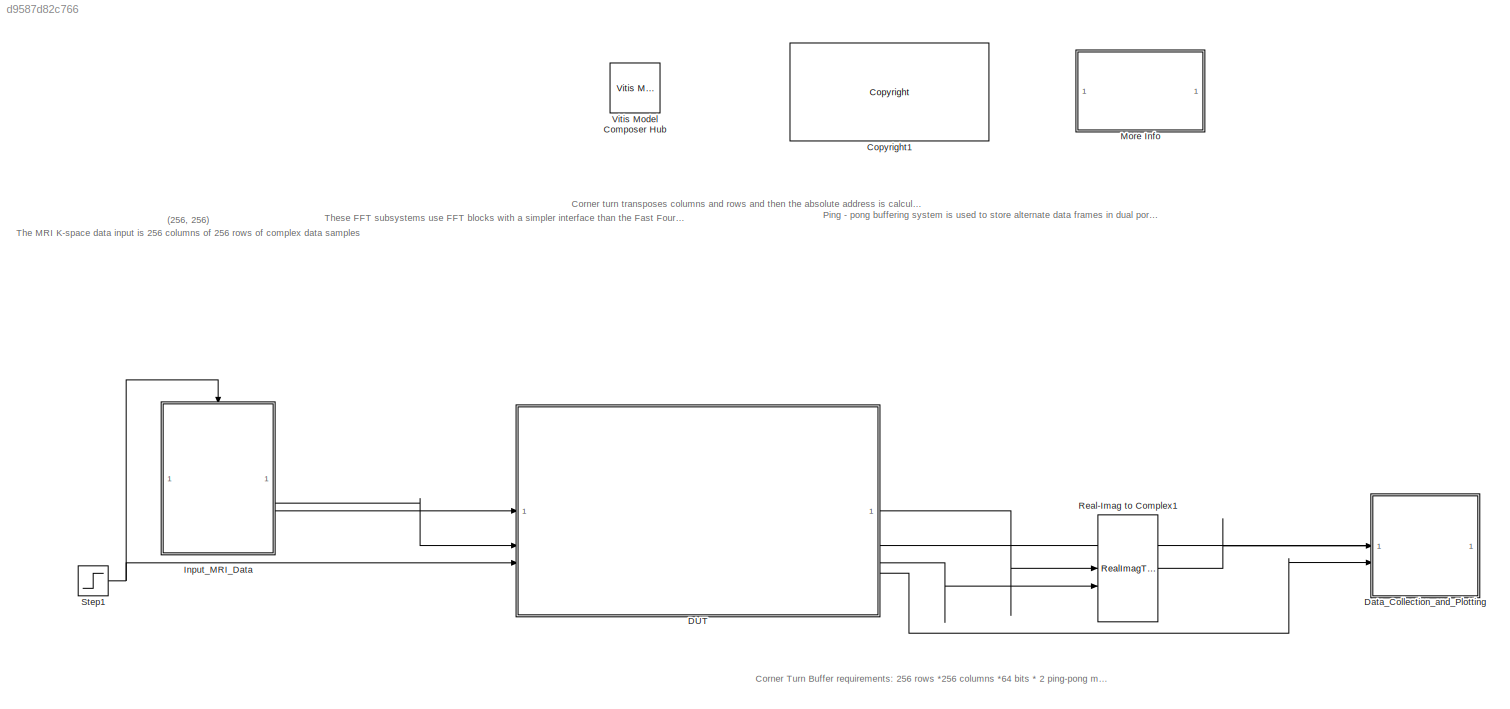
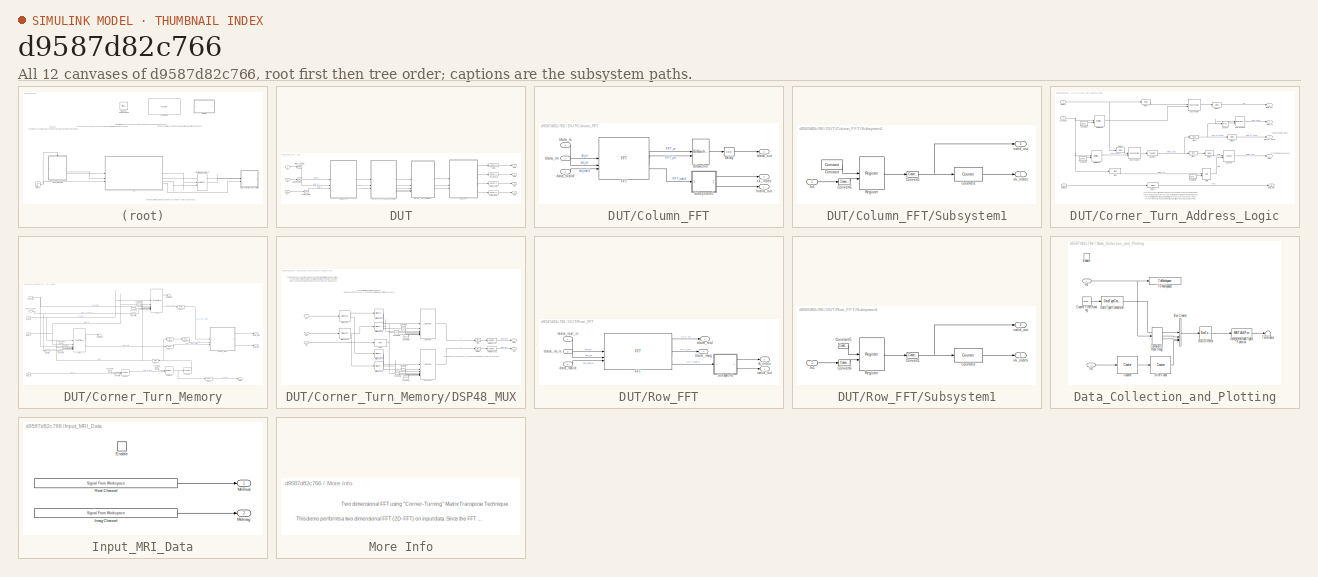
[diagram: thumbnail index - all 12 canvases of the model, root first then tree order]
MODEL slx_d9587d82c766
KIND model
CONFIG AbsTol = auto
CONFIG EnableMultiTasking = on
CONFIG FixedStep = auto
CONFIG MaxStep = auto
CONFIG MinStep = auto
CONFIG PreLoadFcn = MRI_2D_FFT_PreloadFcn
CONFIG RelTol = 1e-3
CONFIG SampleTimeConstraint = Unconstrained
CONFIG SolverName = VariableStepAuto
CONFIG StartTime = 0.0
CONFIG StopTime = 256*256*11+2000
BLOCK [Reference] Copyright1  REF=hdlUtilities/<copyright redacted>
  SourceBlock = hdlUtilities/<copyright redacted>
  SourceType = Xilinx <copyright redacted>
BLOCK [SubSystem] DUT
BLOCK [SubSystem] DUT/Column_FFT
BLOCK [Reference] DUT/Column_FFT/BitBasher  REF=hdlBasic/BitBasher
  SourceBlock = hdlBasic/BitBasher
  SourceType = BitBasher Block
BLOCK [Reference] DUT/Column_FFT/Delay  REF=hdlBasic/Delay
  SourceBlock = hdlBasic/Delay
  SourceType = Delay Block
BLOCK [Reference] DUT/Column_FFT/FFT  REF=hdlBasic/FFT
  SourceBlock = hdlBasic/FFT
  SourceType = Forward Fast Fourier Transform Block
BLOCK [SubSystem] DUT/Column_FFT/Subsystem1
BLOCK [Reference] DUT/Column_FFT/Subsystem1/Constant  REF=hdlBasic/Constant
  SourceBlock = hdlBasic/Constant
  SourceType = Constant Block Block
BLOCK [Reference] DUT/Column_FFT/Subsystem1/Convert1  REF=hdlBasic/Convert
  SourceBlock = hdlBasic/Convert
  SourceType = Type Converter Block
BLOCK [Reference] DUT/Column_FFT/Subsystem1/Convert6  REF=hdlBasic/Convert
  SourceBlock = hdlBasic/Convert
  SourceType = Type Converter Block
BLOCK [Reference] DUT/Column_FFT/Subsystem1/Counter2  REF=hdlBasic/Counter
  SourceBlock = hdlBasic/Counter
  SourceType = Counter Block
BLOCK [Inport] DUT/Column_FFT/Subsystem1/In1
BLOCK [Reference] DUT/Column_FFT/Subsystem1/Register  REF=hdlBasic/Register
  SourceBlock = hdlBasic/Register
  SourceType = Register Block
BLOCK [Outport] DUT/Column_FFT/Subsystem1/valid_out
  Port = 2
  VectorParamsAs1DForOutWhenUnconnected = off
BLOCK [Outport] DUT/Column_FFT/Subsystem1/xk_index
  VectorParamsAs1DForOutWhenUnconnected = off
BLOCK [Inport] DUT/Column_FFT/data_tvalid
  Port = 3
BLOCK [Inport] DUT/Column_FFT/tdata_im
  Port = 2
BLOCK [Outport] DUT/Column_FFT/tdata_out
  Port = 3
  VectorParamsAs1DForOutWhenUnconnected = off
BLOCK [Inport] DUT/Column_FFT/tdata_re
BLOCK [Outport] DUT/Column_FFT/tvalid_out
  VectorParamsAs1DForOutWhenUnconnected = off
BLOCK [Outport] DUT/Column_FFT/xk_index
  Port = 2
  VectorParamsAs1DForOutWhenUnconnected = off
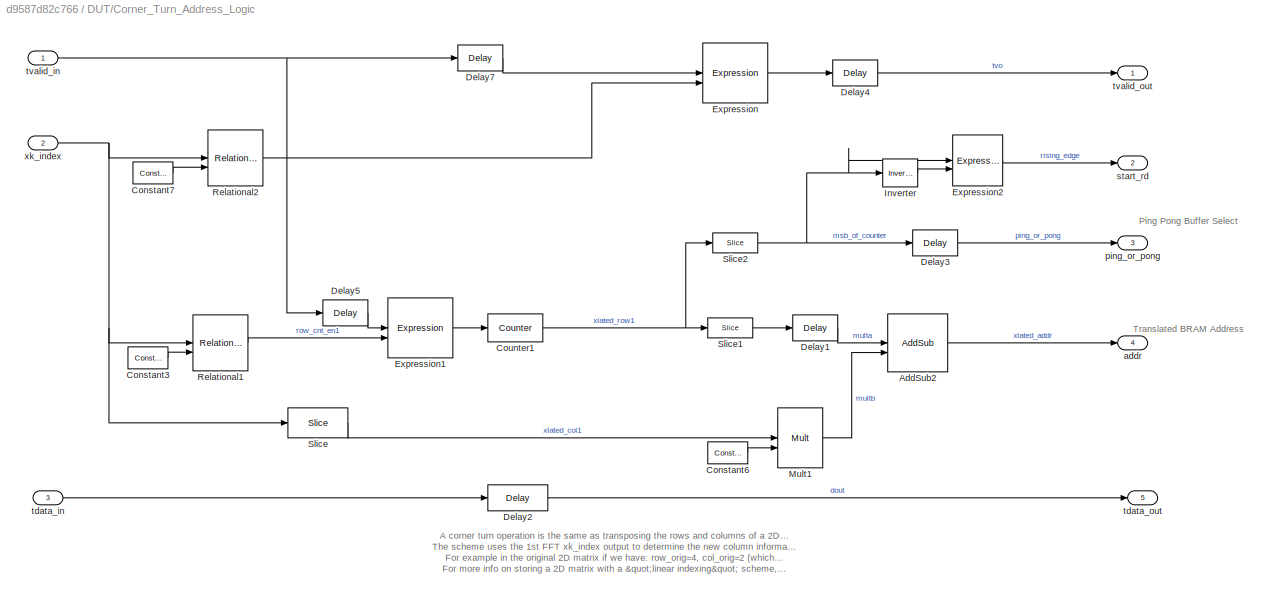
BLOCK [SubSystem] DUT/Corner_Turn_Address_Logic
BLOCK [Reference] DUT/Corner_Turn_Address_Logic/AddSub2  REF=hdlBasic/AddSub
  SourceBlock = hdlBasic/AddSub
  SourceType = Adder/Subtracter Block
BLOCK [Reference] DUT/Corner_Turn_Address_Logic/Constant3  REF=hdlBasic/Constant
  SourceBlock = hdlBasic/Constant
  SourceType = Constant Block Block
BLOCK [Reference] DUT/Corner_Turn_Address_Logic/Constant6  REF=hdlBasic/Constant
  SourceBlock = hdlBasic/Constant
  SourceType = Constant Block Block
BLOCK [Reference] DUT/Corner_Turn_Address_Logic/Constant7  REF=hdlBasic/Constant
  SourceBlock = hdlBasic/Constant
  SourceType = Constant Block Block
BLOCK [Reference] DUT/Corner_Turn_Address_Logic/Counter1  REF=hdlBasic/Counter
  SourceBlock = hdlBasic/Counter
  SourceType = Counter Block
BLOCK [Reference] DUT/Corner_Turn_Address_Logic/Delay1  REF=hdlBasic/Delay
  SourceBlock = hdlBasic/Delay
  SourceType = Delay Block
BLOCK [Reference] DUT/Corner_Turn_Address_Logic/Delay2  REF=hdlBasic/Delay
  SourceBlock = hdlBasic/Delay
  SourceType = Delay Block
BLOCK [Reference] DUT/Corner_Turn_Address_Logic/Delay3  REF=hdlBasic/Delay
  SourceBlock = hdlBasic/Delay
  SourceType = Delay Block
BLOCK [Reference] DUT/Corner_Turn_Address_Logic/Delay4  REF=hdlBasic/Delay
  SourceBlock = hdlBasic/Delay
  SourceType = Delay Block
BLOCK [Reference] DUT/Corner_Turn_Address_Logic/Delay5  REF=hdlBasic/Delay
  SourceBlock = hdlBasic/Delay
  SourceType = Delay Block
BLOCK [Reference] DUT/Corner_Turn_Address_Logic/Delay7  REF=hdlBasic/Delay
  SourceBlock = hdlBasic/Delay
  SourceType = Delay Block
BLOCK [Reference] DUT/Corner_Turn_Address_Logic/Expression  REF=hdlBasic/Expression
  SourceBlock = hdlBasic/Expression
  SourceType = Bitwise Expression Evaluator Block
BLOCK [Reference] DUT/Corner_Turn_Address_Logic/Expression1  REF=hdlBasic/Expression
  SourceBlock = hdlBasic/Expression
  SourceType = Bitwise Expression Evaluator Block
BLOCK [Reference] DUT/Corner_Turn_Address_Logic/Expression2  REF=hdlBasic/Expression
  SourceBlock = hdlBasic/Expression
  SourceType = Bitwise Expression Evaluator Block
BLOCK [Reference] DUT/Corner_Turn_Address_Logic/Inverter  REF=hdlBasic/Inverter
  SourceBlock = hdlBasic/Inverter
  SourceType = Inverter Block
BLOCK [Reference] DUT/Corner_Turn_Address_Logic/Mult1  REF=hdlBasic/Mult
  SourceBlock = hdlBasic/Mult
  SourceType = Multiplier Block
BLOCK [Reference] DUT/Corner_Turn_Address_Logic/Relational1  REF=hdlBasic/Relational
  SourceBlock = hdlBasic/Relational
  SourceType = Arithmetic Relational Operator Block
BLOCK [Reference] DUT/Corner_Turn_Address_Logic/Relational2  REF=hdlBasic/Relational
  SourceBlock = hdlBasic/Relational
  SourceType = Arithmetic Relational Operator Block
BLOCK [Reference] DUT/Corner_Turn_Address_Logic/Slice  REF=hdlBasic/Slice
  SourceBlock = hdlBasic/Slice
  SourceType = Bit Slice Extractor Block
BLOCK [Reference] DUT/Corner_Turn_Address_Logic/Slice1  REF=hdlBasic/Slice
  SourceBlock = hdlBasic/Slice
  SourceType = Bit Slice Extractor Block
BLOCK [Reference] DUT/Corner_Turn_Address_Logic/Slice2  REF=hdlBasic/Slice
  SourceBlock = hdlBasic/Slice
  SourceType = Bit Slice Extractor Block
BLOCK [Outport] DUT/Corner_Turn_Address_Logic/addr
  Port = 4
  VectorParamsAs1DForOutWhenUnconnected = off
BLOCK [Outport] DUT/Corner_Turn_Address_Logic/ping_or_pong
  Port = 3
  VectorParamsAs1DForOutWhenUnconnected = off
BLOCK [Outport] DUT/Corner_Turn_Address_Logic/start_rd
  Port = 2
  VectorParamsAs1DForOutWhenUnconnected = off
BLOCK [Inport] DUT/Corner_Turn_Address_Logic/tdata_in
  Port = 3
BLOCK [Outport] DUT/Corner_Turn_Address_Logic/tdata_out
  Port = 5
  VectorParamsAs1DForOutWhenUnconnected = off
BLOCK [Inport] DUT/Corner_Turn_Address_Logic/tvalid_in
BLOCK [Outport] DUT/Corner_Turn_Address_Logic/tvalid_out
  VectorParamsAs1DForOutWhenUnconnected = off
BLOCK [Inport] DUT/Corner_Turn_Address_Logic/xk_index
  Port = 2
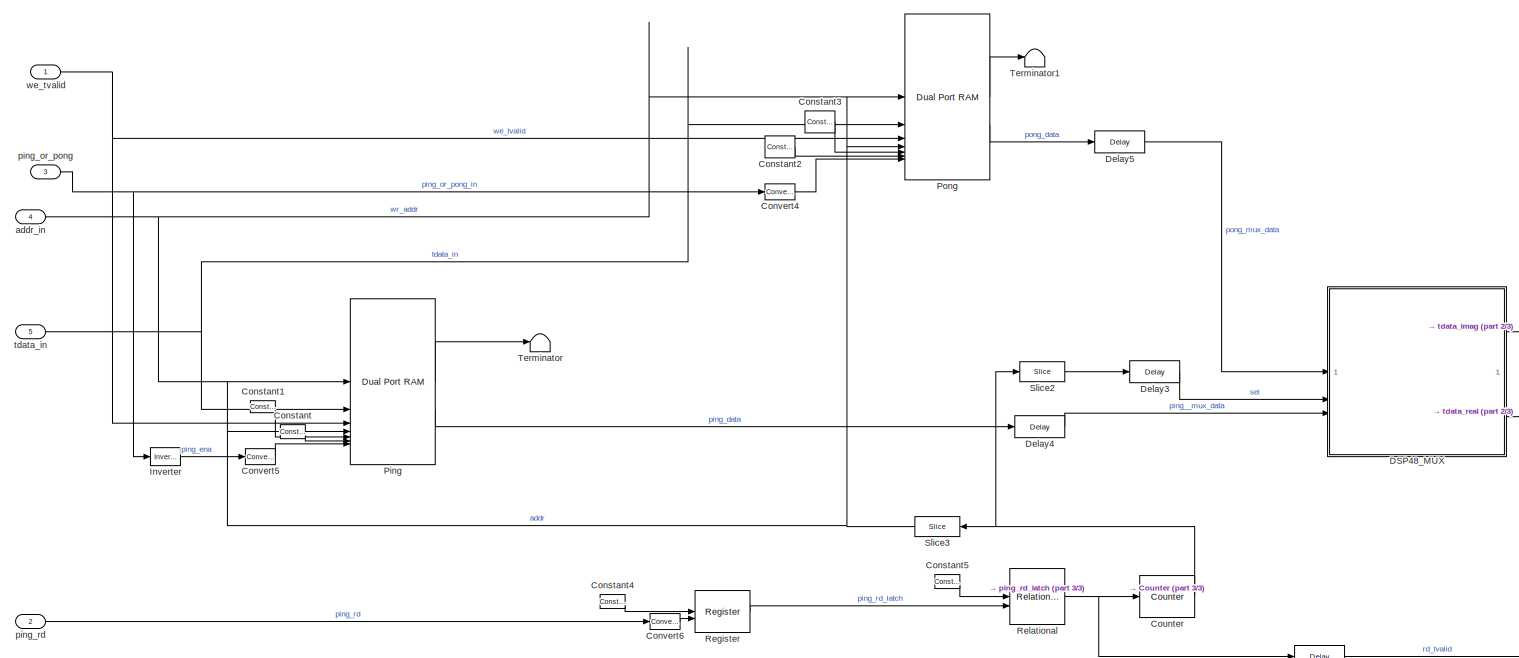
[diagram: DUT/Corner_Turn_Memory - part 1/3, most of the canvas]
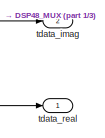
[diagram: DUT/Corner_Turn_Memory - part 2/3, middle right region]
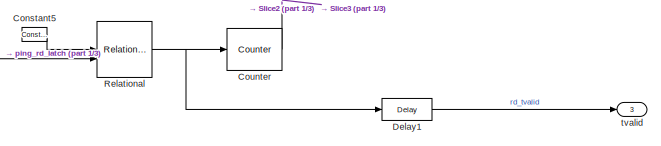
[diagram: DUT/Corner_Turn_Memory - part 3/3, bottom right region]
BLOCK [SubSystem] DUT/Corner_Turn_Memory
BLOCK [Reference] DUT/Corner_Turn_Memory/Constant  REF=hdlBasic/Constant
  SourceBlock = hdlBasic/Constant
  SourceType = Constant Block Block
BLOCK [Reference] DUT/Corner_Turn_Memory/Constant1  REF=hdlBasic/Constant
  SourceBlock = hdlBasic/Constant
  SourceType = Constant Block Block
BLOCK [Reference] DUT/Corner_Turn_Memory/Constant2  REF=hdlBasic/Constant
  SourceBlock = hdlBasic/Constant
  SourceType = Constant Block Block
BLOCK [Reference] DUT/Corner_Turn_Memory/Constant3  REF=hdlBasic/Constant
  SourceBlock = hdlBasic/Constant
  SourceType = Constant Block Block
BLOCK [Reference] DUT/Corner_Turn_Memory/Constant4  REF=hdlBasic/Constant
  SourceBlock = hdlBasic/Constant
  SourceType = Constant Block Block
BLOCK [Reference] DUT/Corner_Turn_Memory/Constant5  REF=hdlBasic/Constant
  SourceBlock = hdlBasic/Constant
  SourceType = Constant Block Block
BLOCK [Reference] DUT/Corner_Turn_Memory/Convert4  REF=hdlBasic/Convert
  SourceBlock = hdlBasic/Convert
  SourceType = Type Converter Block
BLOCK [Reference] DUT/Corner_Turn_Memory/Convert5  REF=hdlBasic/Convert
  SourceBlock = hdlBasic/Convert
  SourceType = Type Converter Block
BLOCK [Reference] DUT/Corner_Turn_Memory/Convert6  REF=hdlBasic/Convert
  SourceBlock = hdlBasic/Convert
  SourceType = Type Converter Block
BLOCK [Reference] DUT/Corner_Turn_Memory/Counter  REF=hdlBasic/Counter
  SourceBlock = hdlBasic/Counter
  SourceType = Counter Block
BLOCK [SubSystem] DUT/Corner_Turn_Memory/DSP48_MUX
BLOCK [Reference] DUT/Corner_Turn_Memory/DSP48_MUX/BitBasher  REF=hdlBasic/BitBasher
  SourceBlock = hdlBasic/BitBasher
  SourceType = BitBasher Block
BLOCK [Reference] DUT/Corner_Turn_Memory/DSP48_MUX/BitBasher1  REF=hdlBasic/BitBasher
  SourceBlock = hdlBasic/BitBasher
  SourceType = BitBasher Block
BLOCK [Reference] DUT/Corner_Turn_Memory/DSP48_MUX/BitBasher2  REF=hdlBasic/BitBasher
  SourceBlock = hdlBasic/BitBasher
  SourceType = BitBasher Block
BLOCK [Reference] DUT/Corner_Turn_Memory/DSP48_MUX/BitBasher3  REF=hdlBasic/BitBasher
  SourceBlock = hdlBasic/BitBasher
  SourceType = BitBasher Block
BLOCK [Reference] DUT/Corner_Turn_Memory/DSP48_MUX/BitBasher4  REF=hdlBasic/BitBasher
  SourceBlock = hdlBasic/BitBasher
  SourceType = BitBasher Block
BLOCK [Reference] DUT/Corner_Turn_Memory/DSP48_MUX/BitBasher5  REF=hdlBasic/BitBasher
  SourceBlock = hdlBasic/BitBasher
  SourceType = BitBasher Block
BLOCK [Reference] DUT/Corner_Turn_Memory/DSP48_MUX/Constant10  REF=hdlBasic/Constant
  SourceBlock = hdlBasic/Constant
  SourceType = Constant Block Block
BLOCK [Reference] DUT/Corner_Turn_Memory/DSP48_MUX/Constant11  REF=hdlBasic/Constant
  SourceBlock = hdlBasic/Constant
  SourceType = Constant Block Block
BLOCK [Reference] DUT/Corner_Turn_Memory/DSP48_MUX/Constant6  REF=hdlBasic/Constant
  SourceBlock = hdlBasic/Constant
  SourceType = Constant Block Block
BLOCK [Reference] DUT/Corner_Turn_Memory/DSP48_MUX/Constant7  REF=hdlBasic/Constant
  SourceBlock = hdlBasic/Constant
  SourceType = Constant Block Block
BLOCK [Reference] DUT/Corner_Turn_Memory/DSP48_MUX/Constant8  REF=hdlBasic/Constant
  SourceBlock = hdlBasic/Constant
  SourceType = Constant Block Block
BLOCK [Reference] DUT/Corner_Turn_Memory/DSP48_MUX/Constant9  REF=hdlBasic/Constant
  SourceBlock = hdlBasic/Constant
  SourceType = Constant Block Block
BLOCK [Reference] DUT/Corner_Turn_Memory/DSP48_MUX/DSP48E1   REF=hdlBasic/DSP48E1 
  SourceBlock = hdlBasic/DSP48E1
  SourceType = DSP48E1 Block
BLOCK [Reference] DUT/Corner_Turn_Memory/DSP48_MUX/DSP48E1 1  REF=hdlBasic/DSP48E1 
  SourceBlock = hdlBasic/DSP48E1
  SourceType = DSP48E1 Block
BLOCK [Inport] DUT/Corner_Turn_Memory/DSP48_MUX/In1
BLOCK [Inport] DUT/Corner_Turn_Memory/DSP48_MUX/In2
  NameLocation = top
  Port = 2
BLOCK [Inport] DUT/Corner_Turn_Memory/DSP48_MUX/In3
  Port = 3
BLOCK [Outport] DUT/Corner_Turn_Memory/DSP48_MUX/Out1
  VectorParamsAs1DForOutWhenUnconnected = off
BLOCK [Outport] DUT/Corner_Turn_Memory/DSP48_MUX/Out2
  Port = 2
  VectorParamsAs1DForOutWhenUnconnected = off
BLOCK [Reference] DUT/Corner_Turn_Memory/DSP48_MUX/ROM  REF=hdlBasic/ROM
  SourceBlock = hdlBasic/ROM
  SourceType = Single Port Read-Only Memory Block
BLOCK [Reference] DUT/Corner_Turn_Memory/DSP48_MUX/Reinterpret  REF=hdlBasic/Reinterpret
  SourceBlock = hdlBasic/Reinterpret
  SourceType = Type Reinterpreter Block
BLOCK [Reference] DUT/Corner_Turn_Memory/DSP48_MUX/Reinterpret1  REF=hdlBasic/Reinterpret
  SourceBlock = hdlBasic/Reinterpret
  SourceType = Type Reinterpreter Block
BLOCK [Reference] DUT/Corner_Turn_Memory/DSP48_MUX/Slice  REF=hdlBasic/Slice
  SourceBlock = hdlBasic/Slice
  SourceType = Bit Slice Extractor Block
BLOCK [Reference] DUT/Corner_Turn_Memory/DSP48_MUX/Slice1  REF=hdlBasic/Slice
  SourceBlock = hdlBasic/Slice
  SourceType = Bit Slice Extractor Block
BLOCK [Reference] DUT/Corner_Turn_Memory/Delay1  REF=hdlBasic/Delay
  SourceBlock = hdlBasic/Delay
  SourceType = Delay Block
BLOCK [Reference] DUT/Corner_Turn_Memory/Delay3  REF=hdlBasic/Delay
  SourceBlock = hdlBasic/Delay
  SourceType = Delay Block
BLOCK [Reference] DUT/Corner_Turn_Memory/Delay4  REF=hdlBasic/Delay
  SourceBlock = hdlBasic/Delay
  SourceType = Delay Block
BLOCK [Reference] DUT/Corner_Turn_Memory/Delay5  REF=hdlBasic/Delay
  SourceBlock = hdlBasic/Delay
  SourceType = Delay Block
BLOCK [Reference] DUT/Corner_Turn_Memory/Inverter  REF=hdlBasic/Inverter
  SourceBlock = hdlBasic/Inverter
  SourceType = Inverter Block
BLOCK [Reference] DUT/Corner_Turn_Memory/Ping  REF=hdlBasic/Dual Port RAM
  SourceBlock = hdlBasic/Dual Port RAM
  SourceType = Dual Port Random Access Memory Block
BLOCK [Reference] DUT/Corner_Turn_Memory/Pong  REF=hdlBasic/Dual Port RAM
  SourceBlock = hdlBasic/Dual Port RAM
  SourceType = Dual Port Random Access Memory Block
BLOCK [Reference] DUT/Corner_Turn_Memory/Register  REF=hdlBasic/Register
  SourceBlock = hdlBasic/Register
  SourceType = Register Block
BLOCK [Reference] DUT/Corner_Turn_Memory/Relational  REF=hdlBasic/Relational
  SourceBlock = hdlBasic/Relational
  SourceType = Arithmetic Relational Operator Block
BLOCK [Reference] DUT/Corner_Turn_Memory/Slice2  REF=hdlBasic/Slice
  SourceBlock = hdlBasic/Slice
  SourceType = Bit Slice Extractor Block
BLOCK [Reference] DUT/Corner_Turn_Memory/Slice3  REF=hdlBasic/Slice
  SourceBlock = hdlBasic/Slice
  SourceType = Bit Slice Extractor Block
BLOCK [Terminator] DUT/Corner_Turn_Memory/Terminator
BLOCK [Terminator] DUT/Corner_Turn_Memory/Terminator1
BLOCK [Inport] DUT/Corner_Turn_Memory/addr_in
  Port = 4
BLOCK [Inport] DUT/Corner_Turn_Memory/ping_or_pong
  Port = 3
BLOCK [Inport] DUT/Corner_Turn_Memory/ping_rd
  Port = 2
BLOCK [Outport] DUT/Corner_Turn_Memory/tdata_imag
  Port = 2
  VectorParamsAs1DForOutWhenUnconnected = off
BLOCK [Inport] DUT/Corner_Turn_Memory/tdata_in
  Port = 5
BLOCK [Outport] DUT/Corner_Turn_Memory/tdata_real
  VectorParamsAs1DForOutWhenUnconnected = off
BLOCK [Outport] DUT/Corner_Turn_Memory/tvalid
  Port = 3
  VectorParamsAs1DForOutWhenUnconnected = off
BLOCK [Inport] DUT/Corner_Turn_Memory/we_tvalid
BLOCK [Inport] DUT/In1
BLOCK [Inport] DUT/In2
  Port = 2
BLOCK [Inport] DUT/In3
  Port = 3
BLOCK [Reference] DUT/MRI_im_tdata1  REF=hdlBasic/Gateway In
  SourceBlock = hdlBasic/Gateway In
  SourceType = Gateway In Block
BLOCK [Reference] DUT/MRI_re_tdata1  REF=hdlBasic/Gateway In
  SourceBlock = hdlBasic/Gateway In
  SourceType = Gateway In Block
BLOCK [Outport] DUT/Out1
BLOCK [Outport] DUT/Out2
  Port = 2
BLOCK [Outport] DUT/Out3
  Port = 3
BLOCK [Outport] DUT/Out4
  Port = 4
BLOCK [SubSystem] DUT/Row_FFT
BLOCK [Reference] DUT/Row_FFT/FFT  REF=hdlBasic/FFT
  SourceBlock = hdlBasic/FFT
  SourceType = Forward Fast Fourier Transform Block
BLOCK [SubSystem] DUT/Row_FFT/Subsystem1
BLOCK [Reference] DUT/Row_FFT/Subsystem1/Constant5  REF=hdlBasic/Constant
  SourceBlock = hdlBasic/Constant
  SourceType = Constant Block Block
BLOCK [Reference] DUT/Row_FFT/Subsystem1/Convert1  REF=hdlBasic/Convert
  SourceBlock = hdlBasic/Convert
  SourceType = Type Converter Block
BLOCK [Reference] DUT/Row_FFT/Subsystem1/Convert6  REF=hdlBasic/Convert
  SourceBlock = hdlBasic/Convert
  SourceType = Type Converter Block
BLOCK [Reference] DUT/Row_FFT/Subsystem1/Counter2  REF=hdlBasic/Counter
  SourceBlock = hdlBasic/Counter
  SourceType = Counter Block
BLOCK [Inport] DUT/Row_FFT/Subsystem1/In1
BLOCK [Reference] DUT/Row_FFT/Subsystem1/Register  REF=hdlBasic/Register
  SourceBlock = hdlBasic/Register
  SourceType = Register Block
BLOCK [Outport] DUT/Row_FFT/Subsystem1/valid_out
  Port = 2
  VectorParamsAs1DForOutWhenUnconnected = off
BLOCK [Outport] DUT/Row_FFT/Subsystem1/xk_index
  VectorParamsAs1DForOutWhenUnconnected = off
BLOCK [Inport] DUT/Row_FFT/data_tvalid
  Port = 3
BLOCK [Inport] DUT/Row_FFT/tdata_im_in
  Port = 2
BLOCK [Outport] DUT/Row_FFT/tdata_imag
  Port = 4
  VectorParamsAs1DForOutWhenUnconnected = off
BLOCK [Outport] DUT/Row_FFT/tdata_real
  Port = 3
  VectorParamsAs1DForOutWhenUnconnected = off
BLOCK [Inport] DUT/Row_FFT/tdata_real_in
BLOCK [Outport] DUT/Row_FFT/tvalid_out
  VectorParamsAs1DForOutWhenUnconnected = off
BLOCK [Outport] DUT/Row_FFT/xk_index
  Port = 2
  VectorParamsAs1DForOutWhenUnconnected = off
BLOCK [Reference] DUT/XADC_tvalid1  REF=hdlBasic/Gateway In
  SourceBlock = hdlBasic/Gateway In
  SourceType = Gateway In Block
BLOCK [Reference] DUT/tdata_imag1  REF=hdlBasic/Gateway Out
  SourceBlock = hdlBasic/Gateway Out
  SourceType = Gateway Out Block
BLOCK [Reference] DUT/tdata_real1  REF=hdlBasic/Gateway Out
  SourceBlock = hdlBasic/Gateway Out
  SourceType = Gateway Out Block
BLOCK [Reference] DUT/tvalid1  REF=hdlBasic/Gateway Out
  SourceBlock = hdlBasic/Gateway Out
  SourceType = Gateway Out Block
BLOCK [Reference] DUT/xk_index1  REF=hdlBasic/Gateway Out
  SourceBlock = hdlBasic/Gateway Out
  SourceType = Gateway Out Block
BLOCK [SubSystem] Data_Collection_and_Plotting
  TreatAsAtomicUnit = on
BLOCK [BusCreator] Data_Collection_and_Plotting/Bus Creator
  DisplayOption = bar
  InheritFromInputs = on
  Inputs = 4
BLOCK [BusToVector] Data_Collection_and_Plotting/Bus to Vector
BLOCK [ComplexToRealImag] Data_Collection_and_Plotting/Complex to Real-Imag
BLOCK [Reference] Data_Collection_and_Plotting/Counter  REF=dspswit3/Counter
  SourceBlock = dspswit3/Counter
  SourceType = Counter
BLOCK [Reference] Data_Collection_and_Plotting/Counter Free-Running  REF=simulink/Sources/Counter
Free-Running
  SourceBlock = simulink/Sources/Counter\nFree-Running
  SourceType = Counter Free-Running
BLOCK [DataTypeConversion] Data_Collection_and_Plotting/Data Type Conversion
  OutDataTypeStr = double
  RndMeth = Floor
  SaturateOnIntegerOverflow = off
BLOCK [EnablePort] Data_Collection_and_Plotting/Enable
BLOCK [Inport] Data_Collection_and_Plotting/In1
BLOCK [Inport] Data_Collection_and_Plotting/In2
  Port = 2
BLOCK [MATLABFcn] Data_Collection_and_Plotting/Interpreted MATLAB Function
  MATLABFcn = xlFrameDisplay(u(1),u(2),u(3), row_in*col_in, u(4))
BLOCK [Reference] Data_Collection_and_Plotting/Slice Count  REF=dspswit3/Counter
  SourceBlock = dspswit3/Counter
  SourceType = Counter
BLOCK [Terminator] Data_Collection_and_Plotting/Terminator
BLOCK [ToWorkspace] Data_Collection_and_Plotting/To Workspace
  MaxDataPoints = inf
  NameLocation = top
  SampleTime = -1
  VariableName = mri_result_pl
BLOCK [SubSystem] Input_MRI_Data
  TreatAsAtomicUnit = on
BLOCK [EnablePort] Input_MRI_Data/Enable
BLOCK [Reference] Input_MRI_Data/Imag Channel  REF=dspsrcs4/Signal From
Workspace
  SourceBlock = dspsrcs4/Signal From\nWorkspace
  SourceType = Signal From Workspace
BLOCK [Outport] Input_MRI_Data/MriImag
  Port = 2
  VectorParamsAs1DForOutWhenUnconnected = off
BLOCK [Outport] Input_MRI_Data/MriReal
  VectorParamsAs1DForOutWhenUnconnected = off
BLOCK [Reference] Input_MRI_Data/Real Channel  REF=dspsrcs4/Signal From
Workspace
  SourceBlock = dspsrcs4/Signal From\nWorkspace
  SourceType = Signal From Workspace
BLOCK [SubSystem] More Info
BLOCK [RealImagToComplex] Real-Imag to Complex1
BLOCK [Step] Step1
  SampleTime = 1
  Time = 64
BLOCK [Reference] Vitis Model Composer Hub  REF=vmcUtilities/Vitis Model Composer Hub
  SourceBlock = vmcUtilities/Vitis Model Composer Hub
  SourceType = VMC Hub
  Tag = genX
  UserDataPersistent = on
ANNOTATION (root): Corner Turn Buffer requirements: 256 rows *256 columns *64 bits * 2 ping-pong memories = 8,388,608 bits
ANNOTATION (root): Corner turn transposes columns and rows and then the absolute address is calculated into a 1D array
ANNOTATION (root): Ping - pong buffering system is used to store alternate data frames in dual port memory
ANNOTATION (root): The MRI K-space data input is 256 columns of 256 rows of complex data samples (256, 256)
ANNOTATION (root): T hese FFT subsystems use FFT blocks with a simpler interface than the Fast Fourier Transform block
ANNOTATION DUT/Corner_Turn_Address_Logic: A corner turn operation is the same as transposing the rows and columns of a 2D matrix. When a 2D matrix is transposed , rows become columns and columns become rows. The transposed rows and columns are used to calculate a linear index for BRAM memory addressing. The scheme uses the 1st FFT xk_index output to determine the new column information. When the 1st FFT xk_index == 256 (eg: end of a colum...<+567ch>
ANNOTATION DUT/Corner_Turn_Address_Logic: Ping Pong Buffer Select
ANNOTATION DUT/Corner_Turn_Address_Logic: Translated BRAM Address
ANNOTATION DUT/Corner_Turn_Memory/DSP48_MUX: These DSP48s are configured to perform 2 input, 48 bit multiplexing operations with 2 clocks of latency. For more information on wide bus multiplexing with DSP48s, please see the VIrtex-5 FPGA ExtremeDSP Design Consideration User Guide, UG193.
ANNOTATION DUT/Corner_Turn_Memory/DSP48_MUX: DSP48 will multiplex between A:B and C. Both A:B and C inputs are zero-padded to 48bit width in these BitBasher blocks
ANNOTATION DUT/Corner_Turn_Memory/DSP48_MUX: The Slice blocks remove the zero-padding and the Reinterpert blocks restore the binary point location
ANNOTATION More Info: This demo performs a two dimensional FFT (2D-FFT) on input data. Since the FFT is completely separable in two dimensions, a column wise FFT is performed in the input image, followed by row wise FFT to realize the 2D-FFT. An efficient implementation is to transpose the columns and rows in memory using a "corner-turning" technique before performing the 2nd FFT operation. This design performs the tra...<+132ch>
ANNOTATION More Info: Two dimensional FFT using "Corner-Turning" Matrix Transpose Technique
LINE DUT/Column_FFT/BitBasher:1 -> DUT/Column_FFT/Delay:1
LINE DUT/Column_FFT/Delay:1 -> DUT/Column_FFT/tdata_out:1
LINE DUT/Column_FFT/FFT:1 -> DUT/Column_FFT/BitBasher:1
LINE DUT/Column_FFT/FFT:2 -> DUT/Column_FFT/BitBasher:2
LINE DUT/Column_FFT/FFT:3 -> DUT/Column_FFT/Subsystem1:1
LINE DUT/Column_FFT/Subsystem1/Constant:1 -> DUT/Column_FFT/Subsystem1/Register:1
NET DUT/Column_FFT/Subsystem1/Convert1:1 -> DUT/Column_FFT/Subsystem1/Counter2:1, DUT/Column_FFT/Subsystem1/valid_out:1
LINE DUT/Column_FFT/Subsystem1/Convert6:1 -> DUT/Column_FFT/Subsystem1/Register:2
LINE DUT/Column_FFT/Subsystem1/Counter2:1 -> DUT/Column_FFT/Subsystem1/xk_index:1
LINE DUT/Column_FFT/Subsystem1/In1:1 -> DUT/Column_FFT/Subsystem1/Convert6:1
LINE DUT/Column_FFT/Subsystem1/Register:1 -> DUT/Column_FFT/Subsystem1/Convert1:1
LINE DUT/Column_FFT/Subsystem1:1 -> DUT/Column_FFT/xk_index:1
LINE DUT/Column_FFT/Subsystem1:2 -> DUT/Column_FFT/tvalid_out:1
LINE DUT/Column_FFT/data_tvalid:1 -> DUT/Column_FFT/FFT:3
LINE DUT/Column_FFT/tdata_im:1 -> DUT/Column_FFT/FFT:2
LINE DUT/Column_FFT/tdata_re:1 -> DUT/Column_FFT/FFT:1
LINE DUT/Column_FFT:1 -> DUT/Corner_Turn_Address_Logic:1
LINE DUT/Column_FFT:2 -> DUT/Corner_Turn_Address_Logic:2
LINE DUT/Column_FFT:3 -> DUT/Corner_Turn_Address_Logic:3
LINE DUT/Corner_Turn_Address_Logic/AddSub2:1 -> DUT/Corner_Turn_Address_Logic/addr:1
LINE DUT/Corner_Turn_Address_Logic/Constant3:1 -> DUT/Corner_Turn_Address_Logic/Relational1:2
LINE DUT/Corner_Turn_Address_Logic/Constant6:1 -> DUT/Corner_Turn_Address_Logic/Mult1:2
LINE DUT/Corner_Turn_Address_Logic/Constant7:1 -> DUT/Corner_Turn_Address_Logic/Relational2:2
NET DUT/Corner_Turn_Address_Logic/Counter1:1 -> DUT/Corner_Turn_Address_Logic/Slice1:1, DUT/Corner_Turn_Address_Logic/Slice2:1
LINE DUT/Corner_Turn_Address_Logic/Delay1:1 -> DUT/Corner_Turn_Address_Logic/AddSub2:1
LINE DUT/Corner_Turn_Address_Logic/Delay2:1 -> DUT/Corner_Turn_Address_Logic/tdata_out:1
LINE DUT/Corner_Turn_Address_Logic/Delay3:1 -> DUT/Corner_Turn_Address_Logic/ping_or_pong:1
LINE DUT/Corner_Turn_Address_Logic/Delay4:1 -> DUT/Corner_Turn_Address_Logic/tvalid_out:1
LINE DUT/Corner_Turn_Address_Logic/Delay5:1 -> DUT/Corner_Turn_Address_Logic/Expression1:1
LINE DUT/Corner_Turn_Address_Logic/Delay7:1 -> DUT/Corner_Turn_Address_Logic/Expression:1
LINE DUT/Corner_Turn_Address_Logic/Expression1:1 -> DUT/Corner_Turn_Address_Logic/Counter1:1
LINE DUT/Corner_Turn_Address_Logic/Expression2:1 -> DUT/Corner_Turn_Address_Logic/start_rd:1
LINE DUT/Corner_Turn_Address_Logic/Expression:1 -> DUT/Corner_Turn_Address_Logic/Delay4:1
LINE DUT/Corner_Turn_Address_Logic/Inverter:1 -> DUT/Corner_Turn_Address_Logic/Expression2:2
LINE DUT/Corner_Turn_Address_Logic/Mult1:1 -> DUT/Corner_Turn_Address_Logic/AddSub2:2
LINE DUT/Corner_Turn_Address_Logic/Relational1:1 -> DUT/Corner_Turn_Address_Logic/Expression1:2
LINE DUT/Corner_Turn_Address_Logic/Relational2:1 -> DUT/Corner_Turn_Address_Logic/Expression:2
LINE DUT/Corner_Turn_Address_Logic/Slice1:1 -> DUT/Corner_Turn_Address_Logic/Delay1:1
NET DUT/Corner_Turn_Address_Logic/Slice2:1 -> DUT/Corner_Turn_Address_Logic/Delay3:1, DUT/Corner_Turn_Address_Logic/Expression2:1, DUT/Corner_Turn_Address_Logic/Inverter:1
LINE DUT/Corner_Turn_Address_Logic/Slice:1 -> DUT/Corner_Turn_Address_Logic/Mult1:1
LINE DUT/Corner_Turn_Address_Logic/tdata_in:1 -> DUT/Corner_Turn_Address_Logic/Delay2:1
NET DUT/Corner_Turn_Address_Logic/tvalid_in:1 -> DUT/Corner_Turn_Address_Logic/Delay5:1, DUT/Corner_Turn_Address_Logic/Delay7:1
NET DUT/Corner_Turn_Address_Logic/xk_index:1 -> DUT/Corner_Turn_Address_Logic/Relational1:1, DUT/Corner_Turn_Address_Logic/Relational2:1, DUT/Corner_Turn_Address_Logic/Slice:1
LINE DUT/Corner_Turn_Address_Logic:1 -> DUT/Corner_Turn_Memory:1
LINE DUT/Corner_Turn_Address_Logic:2 -> DUT/Corner_Turn_Memory:2
LINE DUT/Corner_Turn_Address_Logic:3 -> DUT/Corner_Turn_Memory:3
LINE DUT/Corner_Turn_Address_Logic:4 -> DUT/Corner_Turn_Memory:4
LINE DUT/Corner_Turn_Address_Logic:5 -> DUT/Corner_Turn_Memory:5
LINE DUT/Corner_Turn_Memory/Constant1:1 -> DUT/Corner_Turn_Memory/Ping:5
LINE DUT/Corner_Turn_Memory/Constant2:1 -> DUT/Corner_Turn_Memory/Pong:6
LINE DUT/Corner_Turn_Memory/Constant3:1 -> DUT/Corner_Turn_Memory/Pong:5
LINE DUT/Corner_Turn_Memory/Constant4:1 -> DUT/Corner_Turn_Memory/Register:1
LINE DUT/Corner_Turn_Memory/Constant5:1 -> DUT/Corner_Turn_Memory/Relational:1
LINE DUT/Corner_Turn_Memory/Constant:1 -> DUT/Corner_Turn_Memory/Ping:6
LINE DUT/Corner_Turn_Memory/Convert4:1 -> DUT/Corner_Turn_Memory/Pong:7
LINE DUT/Corner_Turn_Memory/Convert5:1 -> DUT/Corner_Turn_Memory/Ping:7
LINE DUT/Corner_Turn_Memory/Convert6:1 -> DUT/Corner_Turn_Memory/Register:2
NET DUT/Corner_Turn_Memory/Counter:1 -> DUT/Corner_Turn_Memory/Slice2:1, DUT/Corner_Turn_Memory/Slice3:1
LINE DUT/Corner_Turn_Memory/DSP48_MUX/BitBasher1:1 -> DUT/Corner_Turn_Memory/DSP48_MUX/DSP48E1 :1
LINE DUT/Corner_Turn_Memory/DSP48_MUX/BitBasher1:2 -> DUT/Corner_Turn_Memory/DSP48_MUX/DSP48E1 :2
LINE DUT/Corner_Turn_Memory/DSP48_MUX/BitBasher2:1 -> DUT/Corner_Turn_Memory/DSP48_MUX/DSP48E1 :3
LINE DUT/Corner_Turn_Memory/DSP48_MUX/BitBasher3:1 -> DUT/Corner_Turn_Memory/DSP48_MUX/BitBasher2:1
LINE DUT/Corner_Turn_Memory/DSP48_MUX/BitBasher3:2 -> DUT/Corner_Turn_Memory/DSP48_MUX/BitBasher5:1
LINE DUT/Corner_Turn_Memory/DSP48_MUX/BitBasher4:1 -> DUT/Corner_Turn_Memory/DSP48_MUX/DSP48E1 1:1
LINE DUT/Corner_Turn_Memory/DSP48_MUX/BitBasher4:2 -> DUT/Corner_Turn_Memory/DSP48_MUX/DSP48E1 1:2
LINE DUT/Corner_Turn_Memory/DSP48_MUX/BitBasher5:1 -> DUT/Corner_Turn_Memory/DSP48_MUX/DSP48E1 1:3
LINE DUT/Corner_Turn_Memory/DSP48_MUX/BitBasher:1 -> DUT/Corner_Turn_Memory/DSP48_MUX/BitBasher1:1
LINE DUT/Corner_Turn_Memory/DSP48_MUX/BitBasher:2 -> DUT/Corner_Turn_Memory/DSP48_MUX/BitBasher4:1
LINE DUT/Corner_Turn_Memory/DSP48_MUX/Constant10:1 -> DUT/Corner_Turn_Memory/DSP48_MUX/DSP48E1 1:5
LINE DUT/Corner_Turn_Memory/DSP48_MUX/Constant11:1 -> DUT/Corner_Turn_Memory/DSP48_MUX/DSP48E1 1:7
LINE DUT/Corner_Turn_Memory/DSP48_MUX/Constant6:1 -> DUT/Corner_Turn_Memory/DSP48_MUX/DSP48E1 1:6
LINE DUT/Corner_Turn_Memory/DSP48_MUX/Constant7:1 -> DUT/Corner_Turn_Memory/DSP48_MUX/DSP48E1 :5
LINE DUT/Corner_Turn_Memory/DSP48_MUX/Constant8:1 -> DUT/Corner_Turn_Memory/DSP48_MUX/DSP48E1 :7
LINE DUT/Corner_Turn_Memory/DSP48_MUX/Constant9:1 -> DUT/Corner_Turn_Memory/DSP48_MUX/DSP48E1 :6
LINE DUT/Corner_Turn_Memory/DSP48_MUX/DSP48E1 1:1 -> DUT/Corner_Turn_Memory/DSP48_MUX/Slice1:1
LINE DUT/Corner_Turn_Memory/DSP48_MUX/DSP48E1 :1 -> DUT/Corner_Turn_Memory/DSP48_MUX/Slice:1
LINE DUT/Corner_Turn_Memory/DSP48_MUX/In1:1 -> DUT/Corner_Turn_Memory/DSP48_MUX/BitBasher:1
LINE DUT/Corner_Turn_Memory/DSP48_MUX/In2:1 -> DUT/Corner_Turn_Memory/DSP48_MUX/ROM:1
LINE DUT/Corner_Turn_Memory/DSP48_MUX/In3:1 -> DUT/Corner_Turn_Memory/DSP48_MUX/BitBasher3:1
NET DUT/Corner_Turn_Memory/DSP48_MUX/ROM:1 -> DUT/Corner_Turn_Memory/DSP48_MUX/DSP48E1 1:4, DUT/Corner_Turn_Memory/DSP48_MUX/DSP48E1 :4
LINE DUT/Corner_Turn_Memory/DSP48_MUX/Reinterpret1:1 -> DUT/Corner_Turn_Memory/DSP48_MUX/Out2:1
LINE DUT/Corner_Turn_Memory/DSP48_MUX/Reinterpret:1 -> DUT/Corner_Turn_Memory/DSP48_MUX/Out1:1
LINE DUT/Corner_Turn_Memory/DSP48_MUX/Slice1:1 -> DUT/Corner_Turn_Memory/DSP48_MUX/Reinterpret1:1
LINE DUT/Corner_Turn_Memory/DSP48_MUX/Slice:1 -> DUT/Corner_Turn_Memory/DSP48_MUX/Reinterpret:1
LINE DUT/Corner_Turn_Memory/DSP48_MUX:1 -> DUT/Corner_Turn_Memory/tdata_imag:1
LINE DUT/Corner_Turn_Memory/DSP48_MUX:2 -> DUT/Corner_Turn_Memory/tdata_real:1
LINE DUT/Corner_Turn_Memory/Delay1:1 -> DUT/Corner_Turn_Memory/tvalid:1
LINE DUT/Corner_Turn_Memory/Delay3:1 -> DUT/Corner_Turn_Memory/DSP48_MUX:2
LINE DUT/Corner_Turn_Memory/Delay4:1 -> DUT/Corner_Turn_Memory/DSP48_MUX:3
LINE DUT/Corner_Turn_Memory/Delay5:1 -> DUT/Corner_Turn_Memory/DSP48_MUX:1
LINE DUT/Corner_Turn_Memory/Inverter:1 -> DUT/Corner_Turn_Memory/Convert5:1
LINE DUT/Corner_Turn_Memory/Ping:1 -> DUT/Corner_Turn_Memory/Terminator:1
LINE DUT/Corner_Turn_Memory/Ping:2 -> DUT/Corner_Turn_Memory/Delay4:1
LINE DUT/Corner_Turn_Memory/Pong:1 -> DUT/Corner_Turn_Memory/Terminator1:1
LINE DUT/Corner_Turn_Memory/Pong:2 -> DUT/Corner_Turn_Memory/Delay5:1
LINE DUT/Corner_Turn_Memory/Register:1 -> DUT/Corner_Turn_Memory/Relational:2
NET DUT/Corner_Turn_Memory/Relational:1 -> DUT/Corner_Turn_Memory/Counter:1, DUT/Corner_Turn_Memory/Delay1:1
LINE DUT/Corner_Turn_Memory/Slice2:1 -> DUT/Corner_Turn_Memory/Delay3:1
NET DUT/Corner_Turn_Memory/Slice3:1 -> DUT/Corner_Turn_Memory/Ping:4, DUT/Corner_Turn_Memory/Pong:4
NET DUT/Corner_Turn_Memory/addr_in:1 -> DUT/Corner_Turn_Memory/Ping:1, DUT/Corner_Turn_Memory/Pong:1
NET DUT/Corner_Turn_Memory/ping_or_pong:1 -> DUT/Corner_Turn_Memory/Convert4:1, DUT/Corner_Turn_Memory/Inverter:1
LINE DUT/Corner_Turn_Memory/ping_rd:1 -> DUT/Corner_Turn_Memory/Convert6:1
NET DUT/Corner_Turn_Memory/tdata_in:1 -> DUT/Corner_Turn_Memory/Ping:2, DUT/Corner_Turn_Memory/Pong:2
NET DUT/Corner_Turn_Memory/we_tvalid:1 -> DUT/Corner_Turn_Memory/Ping:3, DUT/Corner_Turn_Memory/Pong:3
LINE DUT/Corner_Turn_Memory:1 -> DUT/Row_FFT:1
LINE DUT/Corner_Turn_Memory:2 -> DUT/Row_FFT:2
LINE DUT/Corner_Turn_Memory:3 -> DUT/Row_FFT:3
LINE DUT/In1:1 -> DUT/MRI_re_tdata1:1
LINE DUT/In2:1 -> DUT/MRI_im_tdata1:1
LINE DUT/In3:1 -> DUT/XADC_tvalid1:1
LINE DUT/MRI_im_tdata1:1 -> DUT/Column_FFT:2
LINE DUT/MRI_re_tdata1:1 -> DUT/Column_FFT:1
LINE DUT/Row_FFT/FFT:1 -> DUT/Row_FFT/tdata_real:1
LINE DUT/Row_FFT/FFT:2 -> DUT/Row_FFT/tdata_imag:1
LINE DUT/Row_FFT/FFT:3 -> DUT/Row_FFT/Subsystem1:1
LINE DUT/Row_FFT/Subsystem1/Constant5:1 -> DUT/Row_FFT/Subsystem1/Register:1
NET DUT/Row_FFT/Subsystem1/Convert1:1 -> DUT/Row_FFT/Subsystem1/Counter2:1, DUT/Row_FFT/Subsystem1/valid_out:1
LINE DUT/Row_FFT/Subsystem1/Convert6:1 -> DUT/Row_FFT/Subsystem1/Register:2
LINE DUT/Row_FFT/Subsystem1/Counter2:1 -> DUT/Row_FFT/Subsystem1/xk_index:1
LINE DUT/Row_FFT/Subsystem1/In1:1 -> DUT/Row_FFT/Subsystem1/Convert6:1
LINE DUT/Row_FFT/Subsystem1/Register:1 -> DUT/Row_FFT/Subsystem1/Convert1:1
LINE DUT/Row_FFT/Subsystem1:1 -> DUT/Row_FFT/xk_index:1
LINE DUT/Row_FFT/Subsystem1:2 -> DUT/Row_FFT/tvalid_out:1
LINE DUT/Row_FFT/data_tvalid:1 -> DUT/Row_FFT/FFT:3
LINE DUT/Row_FFT/tdata_im_in:1 -> DUT/Row_FFT/FFT:2
LINE DUT/Row_FFT/tdata_real_in:1 -> DUT/Row_FFT/FFT:1
LINE DUT/Row_FFT:1 -> DUT/tvalid1:1
LINE DUT/Row_FFT:2 -> DUT/xk_index1:1
LINE DUT/Row_FFT:3 -> DUT/tdata_real1:1
LINE DUT/Row_FFT:4 -> DUT/tdata_imag1:1
LINE DUT/XADC_tvalid1:1 -> DUT/Column_FFT:3
LINE DUT/tdata_imag1:1 -> DUT/Out3:1
LINE DUT/tdata_real1:1 -> DUT/Out1:1
LINE DUT/tvalid1:1 -> DUT/Out2:1
LINE DUT/xk_index1:1 -> DUT/Out4:1
LINE DUT:1 -> Real-Imag to Complex1:1
LINE DUT:2 -> Data_Collection_and_Plotting:enable
LINE DUT:3 -> Real-Imag to Complex1:2
LINE DUT:4 -> Data_Collection_and_Plotting:2
LINE Data_Collection_and_Plotting/Bus Creator:1 -> Data_Collection_and_Plotting/Bus to Vector:1
LINE Data_Collection_and_Plotting/Bus to Vector:1 -> Data_Collection_and_Plotting/Interpreted MATLAB Function:1
LINE Data_Collection_and_Plotting/Complex to Real-Imag:1 -> Data_Collection_and_Plotting/Bus Creator:2
LINE Data_Collection_and_Plotting/Complex to Real-Imag:2 -> Data_Collection_and_Plotting/Bus Creator:3
LINE Data_Collection_and_Plotting/Counter Free-Running:1 -> Data_Collection_and_Plotting/Data Type Conversion:1
LINE Data_Collection_and_Plotting/Counter:1 -> Data_Collection_and_Plotting/Slice Count:1
LINE Data_Collection_and_Plotting/Data Type Conversion:1 -> Data_Collection_and_Plotting/Bus Creator:1
NET Data_Collection_and_Plotting/In1:1 -> Data_Collection_and_Plotting/Complex to Real-Imag:1, Data_Collection_and_Plotting/To Workspace:1
LINE Data_Collection_and_Plotting/In2:1 -> Data_Collection_and_Plotting/Counter:1
LINE Data_Collection_and_Plotting/Interpreted MATLAB Function:1 -> Data_Collection_and_Plotting/Terminator:1
LINE Data_Collection_and_Plotting/Slice Count:1 -> Data_Collection_and_Plotting/Bus Creator:4
LINE Input_MRI_Data/Imag Channel:1 -> Input_MRI_Data/MriImag:1
LINE Input_MRI_Data/Real Channel:1 -> Input_MRI_Data/MriReal:1
LINE Input_MRI_Data:1 -> DUT:1
LINE Input_MRI_Data:2 -> DUT:2
LINE Real-Imag to Complex1:1 -> Data_Collection_and_Plotting:1
NET Step1:1 -> DUT:3, Input_MRI_Data:enable
note: NET lines group one-source signal fan-out (src -> all destinations, sorted); 1:1 wires keep LINE
